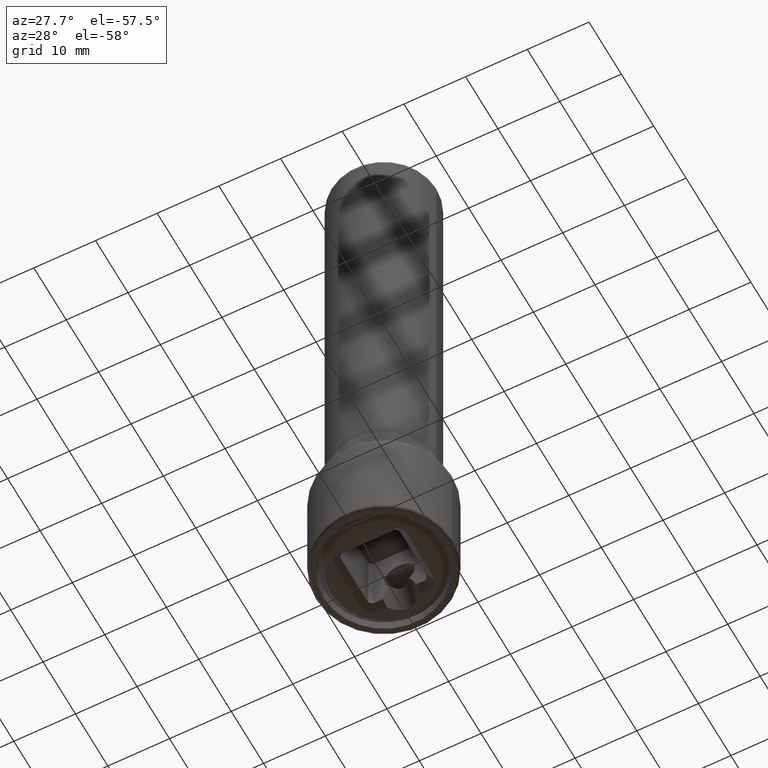
[diagram: clean part render]
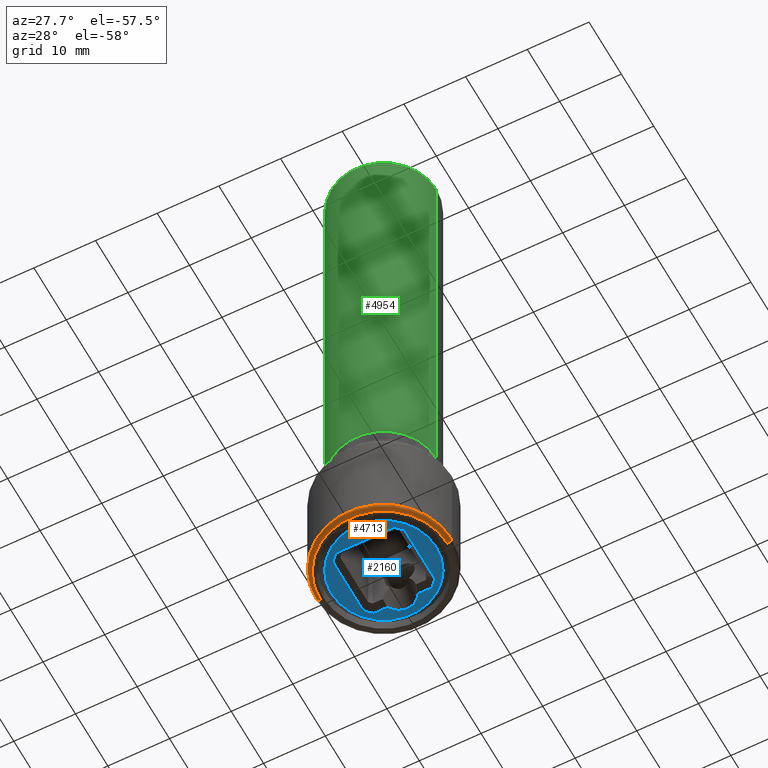
[diagram: same view with three faces highlighted in distinct colors, each labeled with its STEP entity id]
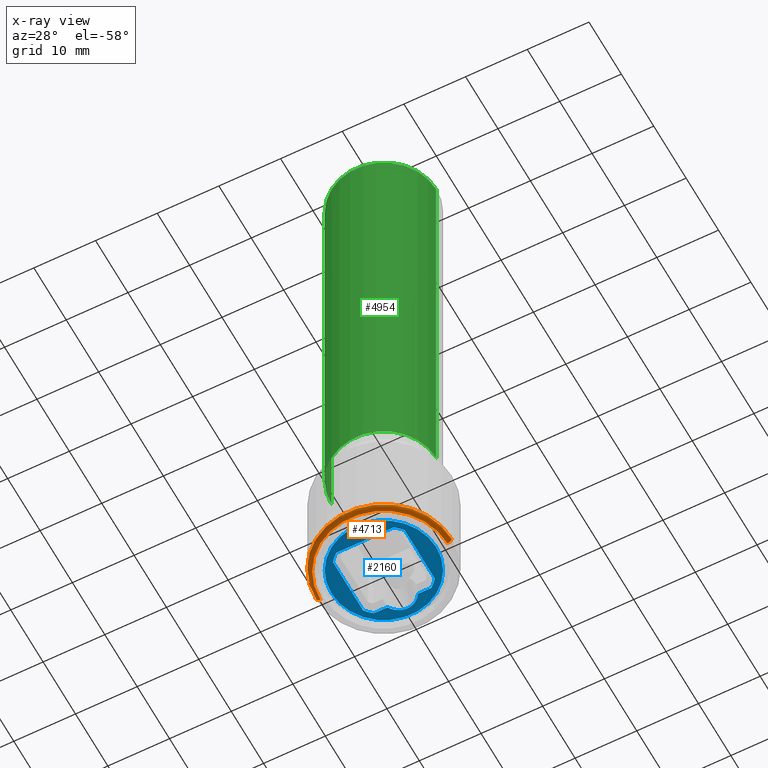
[diagram: x-ray of the same camera — body ghosted, the three highlighted faces saturated]
A machine part, auxiliary view with three faces highlighted in distinct colors.
The next image is the same camera in x-ray (body ghosted, the three faces saturated) — at least one of them is partly hidden behind the body in this view.
Their STEP definitions:

[orange] entity #4713 — the highlighted toroidal blend (fillet) surface has major radius 10.3 mm and minor (blend) radius 0.7 mm.
#3903=CARTESIAN_POINT('',(0.E0,0.E0,-3.E-1));
#3904=DIRECTION('',(0.E0,0.E0,-1.E0));
#3905=DIRECTION('',(-1.E0,0.E0,0.E0));
#3906=AXIS2_PLACEMENT_3D('',#3903,#3904,#3905);
#4180=CARTESIAN_POINT('',(1.03E1,4.037936651713E-12,4.E-1));
#4181=DIRECTION('',(3.920336277830E-13,-1.E0,0.E0));
#4182=DIRECTION('',(0.E0,0.E0,-1.E0));
#4183=AXIS2_PLACEMENT_3D('',#4180,#4181,#4182);
#4188=CARTESIAN_POINT('',(-1.03E1,-4.039185652616E-12,4.E-1));
#4189=DIRECTION('',(-3.921550584263E-13,1.E0,0.E0));
#4190=DIRECTION('',(0.E0,0.E0,-1.E0));
#4191=AXIS2_PLACEMENT_3D('',#4188,#4189,#4190);
#4196=CARTESIAN_POINT('',(0.E0,0.E0,4.E-1));
#4197=DIRECTION('',(0.E0,0.E0,-1.E0));
#4198=DIRECTION('',(-1.E0,0.E0,0.E0));
#4199=AXIS2_PLACEMENT_3D('',#4196,#4197,#4198);
#4493=CARTESIAN_POINT('',(-1.03E1,0.E0,-3.E-1));
#4494=CARTESIAN_POINT('',(1.03E1,0.E0,-3.E-1));
#4495=VERTEX_POINT('',#4493);
#4496=VERTEX_POINT('',#4494);
#4497=CARTESIAN_POINT('',(-1.1E1,0.E0,4.E-1));
#4498=CARTESIAN_POINT('',(1.1E1,0.E0,4.E-1));
#4499=VERTEX_POINT('',#4497);
#4500=VERTEX_POINT('',#4498);
#4701=CARTESIAN_POINT('',(0.E0,0.E0,4.E-1));
#4702=DIRECTION('',(0.E0,0.E0,1.E0));
#4703=DIRECTION('',(-9.997969503270E-1,-2.015088377257E-2,0.E0));
#4704=AXIS2_PLACEMENT_3D('',#4701,#4702,#4703);
#4705=TOROIDAL_SURFACE('',#4704,1.03E1,7.E-1);
#4706=ORIENTED_EDGE('',*,*,#4530,.T.);
#4707=ORIENTED_EDGE('',*,*,#4696,.T.);
#4709=ORIENTED_EDGE('',*,*,#4708,.F.);
#4710=ORIENTED_EDGE('',*,*,#4693,.F.);
#4711=EDGE_LOOP('',(#4706,#4707,#4709,#4710));
#4712=FACE_OUTER_BOUND('',#4711,.F.);
#4713=ADVANCED_FACE('',(#4712),#4705,.T.);
#3907=CIRCLE('',#3906,1.03E1);
#4184=CIRCLE('',#4183,7.E-1);
#4192=CIRCLE('',#4191,7.E-1);
#4200=CIRCLE('',#4199,1.1E1);
#4530=EDGE_CURVE('',#4495,#4496,#3907,.T.);
#4693=EDGE_CURVE('',#4495,#4499,#4192,.T.);
#4696=EDGE_CURVE('',#4496,#4500,#4184,.T.);
#4708=EDGE_CURVE('',#4499,#4500,#4200,.T.);

[blue] entity #2160 — the highlighted planar face has unit normal (0, 0, 1).
#276=CARTESIAN_POINT('',(2.471179603764E0,5.8125E0,0.E0));
#277=CARTESIAN_POINT('',(2.265247970117E0,6.157963492599E0,0.E0));
#278=CARTESIAN_POINT('',(1.853384702823E0,6.617352433952E0,0.E0));
#279=CARTESIAN_POINT('',(1.029658168235E0,7.176171231996E0,0.E0));
#280=CARTESIAN_POINT('',(0.E0,7.403385845336E0,0.E0));
#281=CARTESIAN_POINT('',(-1.029658168235E0,7.176171231996E0,0.E0));
#282=CARTESIAN_POINT('',(-1.853384702823E0,6.617352433952E0,0.E0));
#283=CARTESIAN_POINT('',(-2.265247970117E0,6.157963492599E0,0.E0));
#284=CARTESIAN_POINT('',(-2.471179603764E0,5.8125E0,0.E0));
#292=CARTESIAN_POINT('',(2.471179603764E0,5.8125E0,1.953992523340E-14));
#300=CARTESIAN_POINT('',(-2.471179603764E0,5.8125E0,1.953992523340E-14));
#374=DIRECTION('',(-1.E0,0.E0,0.E0));
#375=VECTOR('',#374,2.189007490120E0);
#376=CARTESIAN_POINT('',(4.660187093884E0,5.8125E0,0.E0));
#377=LINE('',#376,#375);
#378=CARTESIAN_POINT('',(-1.643130076445E-14,-2.176037128265E-14,0.E0));
#379=DIRECTION('',(0.E0,0.E0,1.E0));
#380=DIRECTION('',(7.802013422819E-1,6.255284689777E-1,0.E0));
#381=AXIS2_PLACEMENT_3D('',#378,#379,#380);
#383=DIRECTION('',(0.E0,1.E0,0.E0));
#384=VECTOR('',#383,9.320374187767E0);
#385=CARTESIAN_POINT('',(5.8125E0,-4.660187093884E0,0.E0));
#386=LINE('',#385,#384);
#387=CARTESIAN_POINT('',(1.061373211542E-13,-1.070254995739E-13,0.E0));
#388=DIRECTION('',(0.E0,0.E0,1.E0));
#389=DIRECTION('',(6.255284689777E-1,-7.802013422819E-1,0.E0));
#390=AXIS2_PLACEMENT_3D('',#387,#388,#389);
#392=DIRECTION('',(1.E0,0.E0,0.E0));
#393=VECTOR('',#392,9.320374187767E0);
#394=CARTESIAN_POINT('',(-4.660187093884E0,-5.8125E0,0.E0));
#395=LINE('',#394,#393);
#396=CARTESIAN_POINT('',(-8.126832540256E-14,-1.003641614261E-13,0.E0));
#397=DIRECTION('',(0.E0,0.E0,1.E0));
#398=DIRECTION('',(-7.802013422819E-1,-6.255284689777E-1,0.E0));
#399=AXIS2_PLACEMENT_3D('',#396,#397,#398);
#401=DIRECTION('',(0.E0,-1.E0,0.E0));
#402=VECTOR('',#401,9.320374187767E0);
#403=CARTESIAN_POINT('',(-5.8125E0,4.660187093884E0,0.E0));
#404=LINE('',#403,#402);
#405=CARTESIAN_POINT('',(5.995204332976E-14,-6.350475700856E-14,0.E0));
#406=DIRECTION('',(0.E0,0.E0,1.E0));
#407=DIRECTION('',(-6.255284689777E-1,7.802013422819E-1,0.E0));
#408=AXIS2_PLACEMENT_3D('',#405,#406,#407);
#410=DIRECTION('',(-1.E0,0.E0,0.E0));
#411=VECTOR('',#410,2.189007490120E0);
#412=CARTESIAN_POINT('',(-2.471179603764E0,5.8125E0,0.E0));
#413=LINE('',#412,#411);
#414=CARTESIAN_POINT('',(0.E0,0.E0,0.E0));
#415=DIRECTION('',(0.E0,0.E0,-1.E0));
#416=DIRECTION('',(1.E0,0.E0,0.E0));
#417=AXIS2_PLACEMENT_3D('',#414,#415,#416);
#419=CARTESIAN_POINT('',(0.E0,0.E0,0.E0));
#420=DIRECTION('',(0.E0,0.E0,-1.E0));
#421=DIRECTION('',(-1.E0,0.E0,0.E0));
#422=AXIS2_PLACEMENT_3D('',#419,#420,#421);
#1610=CARTESIAN_POINT('',(5.8125E0,4.660187093884E0,0.E0));
#1611=CARTESIAN_POINT('',(4.660187093884E0,5.8125E0,0.E0));
#1612=VERTEX_POINT('',#1610);
#1613=VERTEX_POINT('',#1611);
#1614=CARTESIAN_POINT('',(5.8125E0,-4.660187093884E0,0.E0));
#1615=VERTEX_POINT('',#1614);
#1618=CARTESIAN_POINT('',(4.660187093884E0,-5.8125E0,0.E0));
#1619=VERTEX_POINT('',#1618);
#1622=CARTESIAN_POINT('',(-4.660187093884E0,-5.8125E0,0.E0));
#1623=VERTEX_POINT('',#1622);
#1626=CARTESIAN_POINT('',(-5.8125E0,-4.660187093884E0,0.E0));
#1627=VERTEX_POINT('',#1626);
#1630=CARTESIAN_POINT('',(-5.8125E0,4.660187093884E0,0.E0));
#1631=VERTEX_POINT('',#1630);
#1634=CARTESIAN_POINT('',(-4.660187093884E0,5.8125E0,0.E0));
#1635=VERTEX_POINT('',#1634);
#1638=VERTEX_POINT('',#292);
#1641=VERTEX_POINT('',#300);
#1642=CARTESIAN_POINT('',(8.5E0,0.E0,0.E0));
#1643=CARTESIAN_POINT('',(-8.5E0,0.E0,0.E0));
#1644=VERTEX_POINT('',#1642);
#1645=VERTEX_POINT('',#1643);
#2132=CARTESIAN_POINT('',(0.E0,0.E0,0.E0));
#2133=DIRECTION('',(0.E0,0.E0,1.E0));
#2134=DIRECTION('',(1.E0,0.E0,0.E0));
#2135=AXIS2_PLACEMENT_3D('',#2132,#2133,#2134);
#2136=PLANE('',#2135);
#2138=ORIENTED_EDGE('',*,*,#2137,.F.);
#2140=ORIENTED_EDGE('',*,*,#2139,.F.);
#2141=EDGE_LOOP('',(#2138,#2140));
#2142=FACE_OUTER_BOUND('',#2141,.F.);
#2143=ORIENTED_EDGE('',*,*,#2017,.F.);
#2144=ORIENTED_EDGE('',*,*,#2034,.F.);
#2145=ORIENTED_EDGE('',*,*,#2062,.F.);
#2147=ORIENTED_EDGE('',*,*,#2146,.F.);
#2149=ORIENTED_EDGE('',*,*,#2148,.F.);
#2151=ORIENTED_EDGE('',*,*,#2150,.F.);
#2153=ORIENTED_EDGE('',*,*,#2152,.F.);
#2155=ORIENTED_EDGE('',*,*,#2154,.F.);
#2156=ORIENTED_EDGE('',*,*,#2123,.F.);
#2157=ORIENTED_EDGE('',*,*,#2045,.F.);
#2158=EDGE_LOOP('',(#2143,#2144,#2145,#2147,#2149,#2151,#2153,#2155,#2156,
#2157));
#2159=FACE_BOUND('',#2158,.F.);
#2160=ADVANCED_FACE('',(#2142,#2159),#2136,.F.);
#285=B_SPLINE_CURVE_WITH_KNOTS('',3,(#276,#277,#278,#279,#280,#281,#282,#283,
#284),.UNSPECIFIED.,.F.,.F.,(4,1,1,1,1,1,4),(0.E0,1.25E-1,2.5E-1,5.E-1,7.5E-1,
8.75E-1,1.E0),.UNSPECIFIED.);
#382=CIRCLE('',#381,7.45E0);
#391=CIRCLE('',#390,7.45E0);
#400=CIRCLE('',#399,7.45E0);
#409=CIRCLE('',#408,7.45E0);
#418=CIRCLE('',#417,8.5E0);
#423=CIRCLE('',#422,8.5E0);
#2017=EDGE_CURVE('',#1638,#1641,#285,.T.);
#2034=EDGE_CURVE('',#1613,#1638,#377,.T.);
#2045=EDGE_CURVE('',#1641,#1635,#413,.T.);
#2062=EDGE_CURVE('',#1612,#1613,#382,.T.);
#2123=EDGE_CURVE('',#1635,#1631,#409,.T.);
#2137=EDGE_CURVE('',#1644,#1645,#418,.T.);
#2139=EDGE_CURVE('',#1645,#1644,#423,.T.);
#2146=EDGE_CURVE('',#1615,#1612,#386,.T.);
#2148=EDGE_CURVE('',#1619,#1615,#391,.T.);
#2150=EDGE_CURVE('',#1623,#1619,#395,.T.);
#2152=EDGE_CURVE('',#1627,#1623,#400,.T.);
#2154=EDGE_CURVE('',#1631,#1627,#404,.T.);

[green] entity #4954 — the highlighted cylindrical surface (partial cylindrical patch) has radius 8.5 mm, axis along (0, 0, 1).
#4251=DIRECTION('',(-7.389936786839E-13,-1.437517206941E-12,1.E0));
#4252=VECTOR('',#4251,7.178562169344E1);
#4253=CARTESIAN_POINT('',(-8.499999999947E0,0.E0,2.381437830656E1));
#4254=LINE('',#4253,#4252);
#4428=CARTESIAN_POINT('',(0.E0,0.E0,9.56E1));
#4429=DIRECTION('',(0.E0,0.E0,1.E0));
#4430=DIRECTION('',(1.E0,0.E0,0.E0));
#4431=AXIS2_PLACEMENT_3D('',#4428,#4429,#4430);
#4436=CARTESIAN_POINT('',(0.E0,0.E0,2.381437833392E1));
#4437=DIRECTION('',(0.E0,0.E0,1.E0));
#4438=DIRECTION('',(1.E0,0.E0,0.E0));
#4439=AXIS2_PLACEMENT_3D('',#4436,#4437,#4438);
#4444=DIRECTION('',(7.389936786839E-13,1.437520064396E-12,1.E0));
#4445=VECTOR('',#4444,7.178562169344E1);
#4446=CARTESIAN_POINT('',(8.499999999947E0,0.E0,2.381437830656E1));
#4447=LINE('',#4446,#4445);
#4455=CARTESIAN_POINT('',(-8.5E0,0.E0,2.381437833392E1));
#4456=CARTESIAN_POINT('',(8.5E0,0.E0,2.381437833392E1));
#4457=VERTEX_POINT('',#4455);
#4458=VERTEX_POINT('',#4456);
#4471=CARTESIAN_POINT('',(8.5E0,0.E0,9.56E1));
#4472=CARTESIAN_POINT('',(-8.5E0,0.E0,9.56E1));
#4473=VERTEX_POINT('',#4471);
#4474=VERTEX_POINT('',#4472);
#4943=CARTESIAN_POINT('',(0.E0,0.E0,1.72E1));
#4944=DIRECTION('',(0.E0,0.E0,1.E0));
#4945=DIRECTION('',(1.E0,0.E0,0.E0));
#4946=AXIS2_PLACEMENT_3D('',#4943,#4944,#4945);
#4947=CYLINDRICAL_SURFACE('',#4946,8.5E0);
#4948=ORIENTED_EDGE('',*,*,#4937,.T.);
#4949=ORIENTED_EDGE('',*,*,#4765,.F.);
#4950=ORIENTED_EDGE('',*,*,#4735,.F.);
#4951=ORIENTED_EDGE('',*,*,#4762,.T.);
#4952=EDGE_LOOP('',(#4948,#4949,#4950,#4951));
#4953=FACE_OUTER_BOUND('',#4952,.F.);
#4954=ADVANCED_FACE('',(#4953),#4947,.T.);
#4432=CIRCLE('',#4431,8.5E0);
#4440=CIRCLE('',#4439,8.5E0);
#4735=EDGE_CURVE('',#4458,#4457,#4440,.T.);
#4762=EDGE_CURVE('',#4458,#4473,#4447,.T.);
#4765=EDGE_CURVE('',#4457,#4474,#4254,.T.);
#4937=EDGE_CURVE('',#4473,#4474,#4432,.T.);